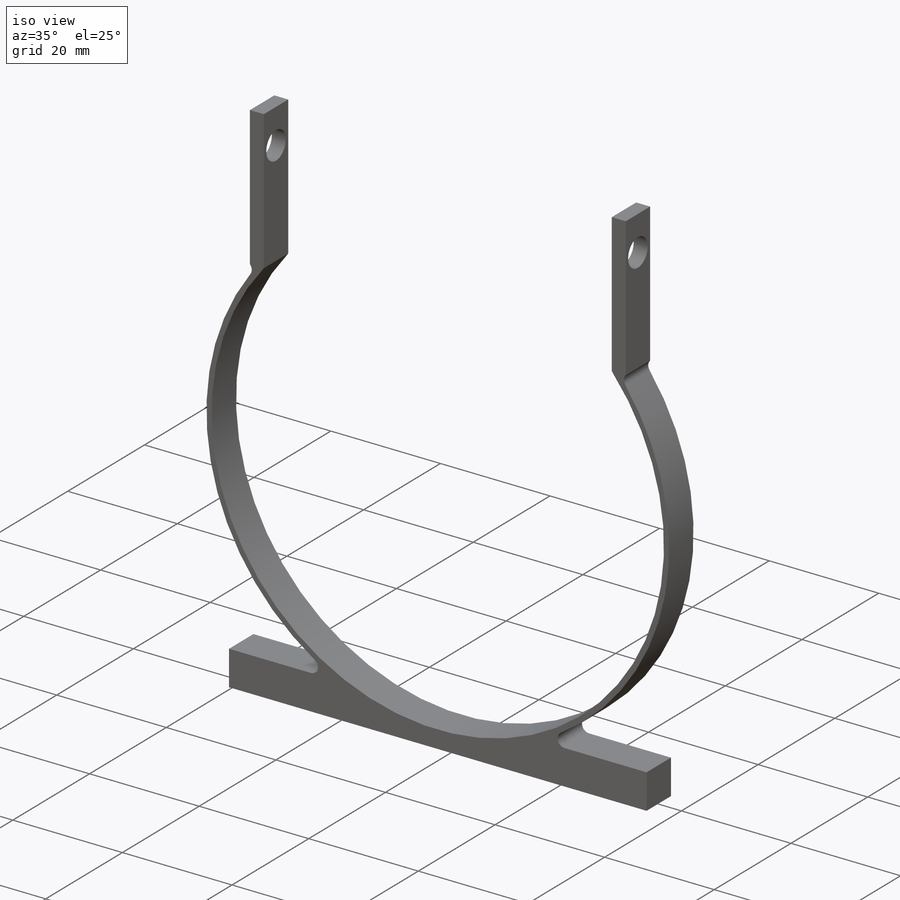
[diagram: iso view]
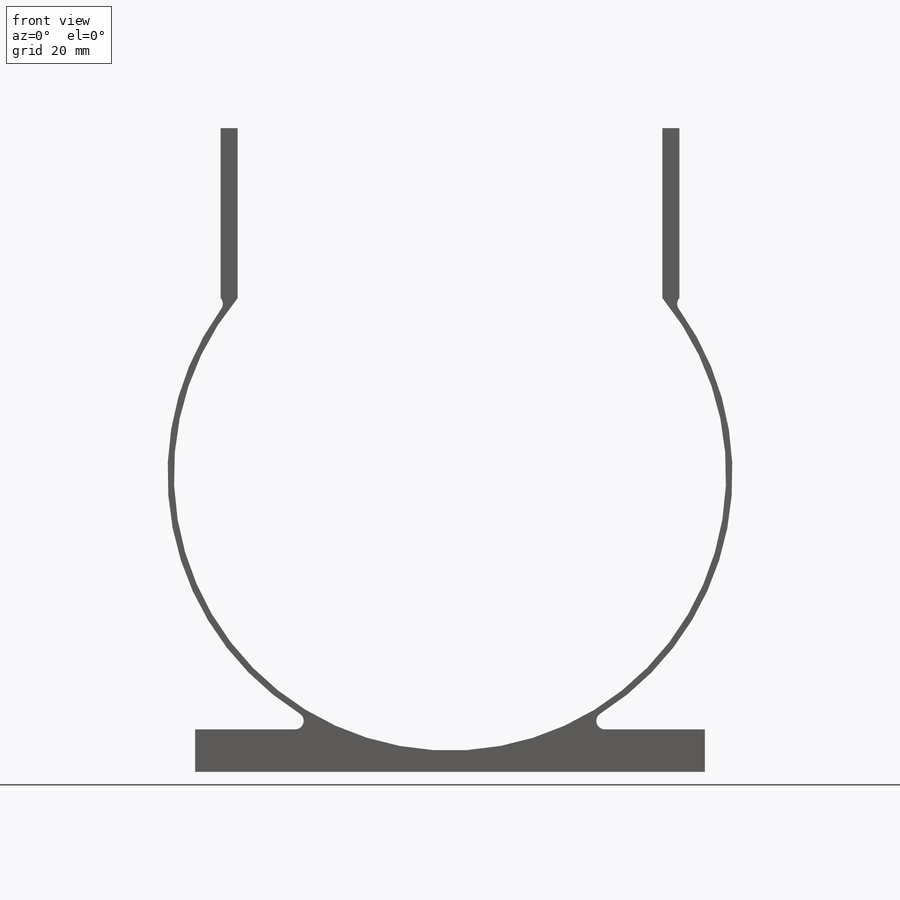
[diagram: front view]
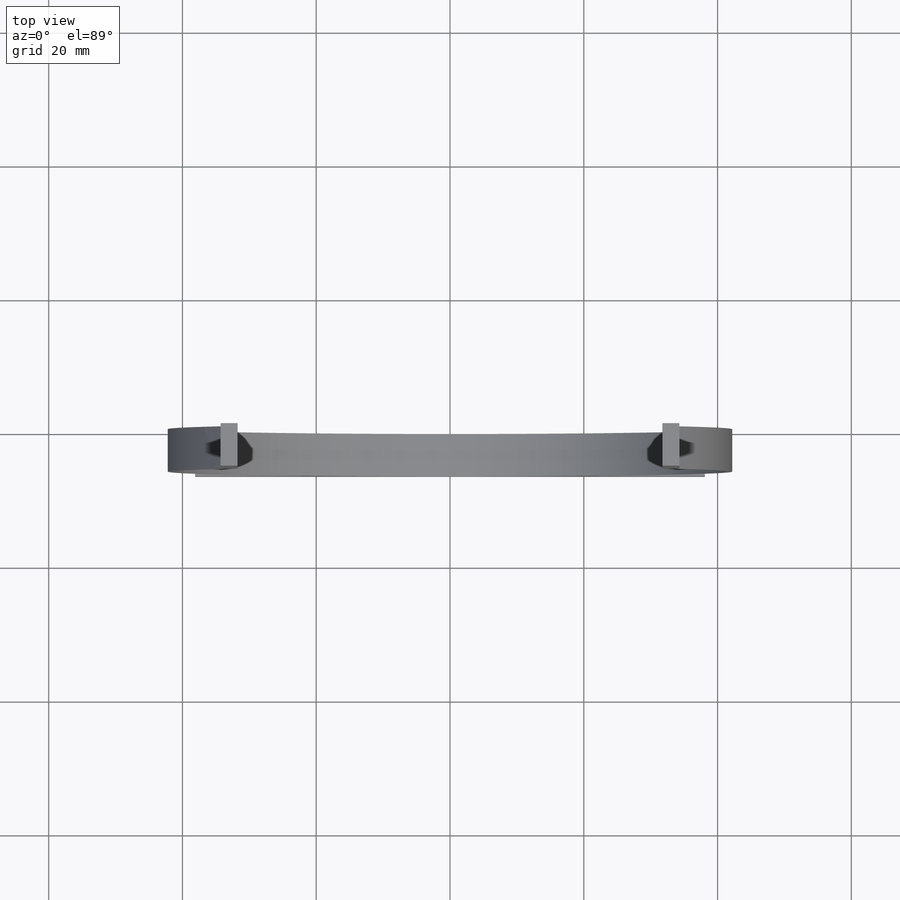
[diagram: top view]
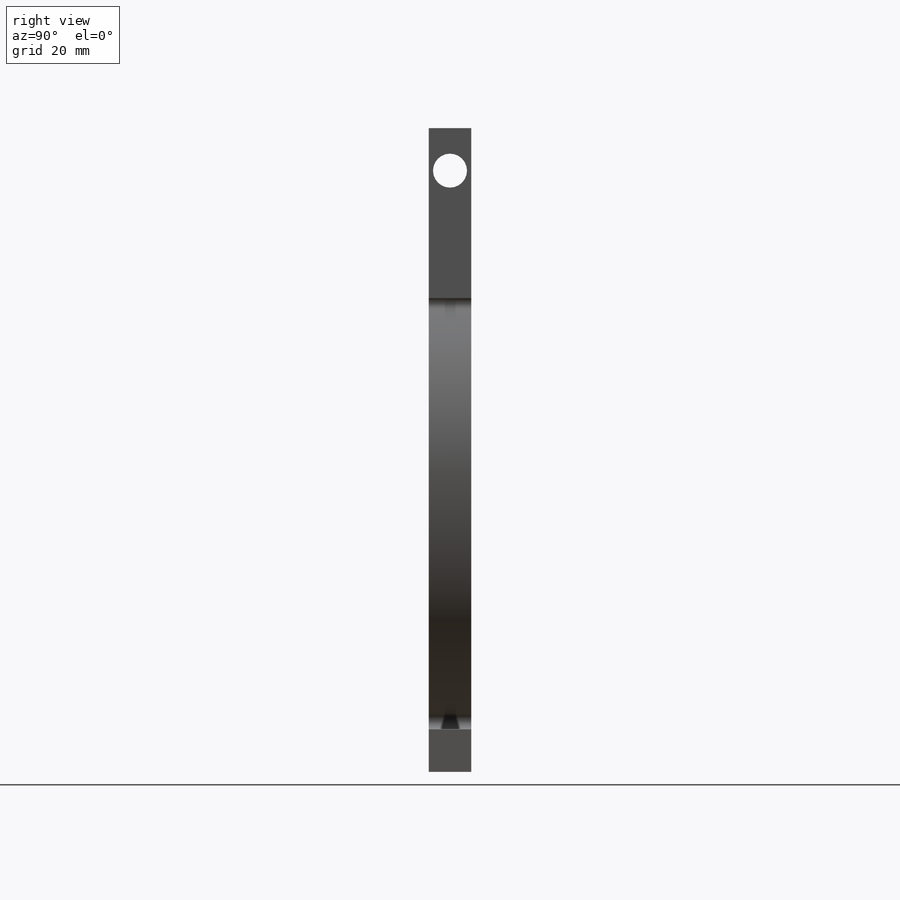
[diagram: right view]
SOLIDWORKS PART (.sldprt)
format: sldprt  version: not decoded by parser v0  size: 209,408 bytes
history: native  units: mm
features: sketch x4, extrude x2, fillet x2, cut_extrude x2, material x1, mirror x1 (+11 scaffold rows collapsed)
feature tree (23):
  scaffold x11  (default folders/planes/origin — collapsed)
  material  "Material <not specified>"
  sketch  "Sketch1"  dims[D1=82.55mm D5=84.455mm D2=41.275mm D3=76.2mm D4=6.35mm]
  extrude  "Boss-Extrude1"  Depth=6.35mm
  fillet  "Fillet1"  Radius=1.27mm
  sketch  "Sketch2"  dims[D1=63.5mm D2=38.1mm]
  cut_extrude  "Cut-Extrude1"  Depth=6.35mm
  sketch  "Sketch3"  dims[D1=25.4mm]
  extrude  "Boss-Extrude2"  Depth=2.54mm
  fillet  "Fillet2"  Radius=1.27mm
  mirror  "Mirror1"
  sketch  "Sketch6"  dims[D1=5.08mm D2=6.35mm]
  cut_extrude  "Cut-Extrude2"  [1 undecoded]
decode coverage: 9 of 11 modeling features carry decoded parameters
note: 1 parameter value undecoded
note: suppression state not decoded; provenance and decode notes live in map.json
